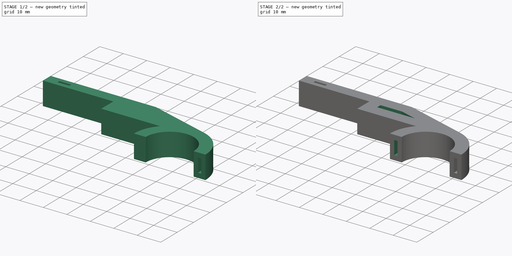
[diagram: build sequence overview — one tinted view per stage of 2, left to right]
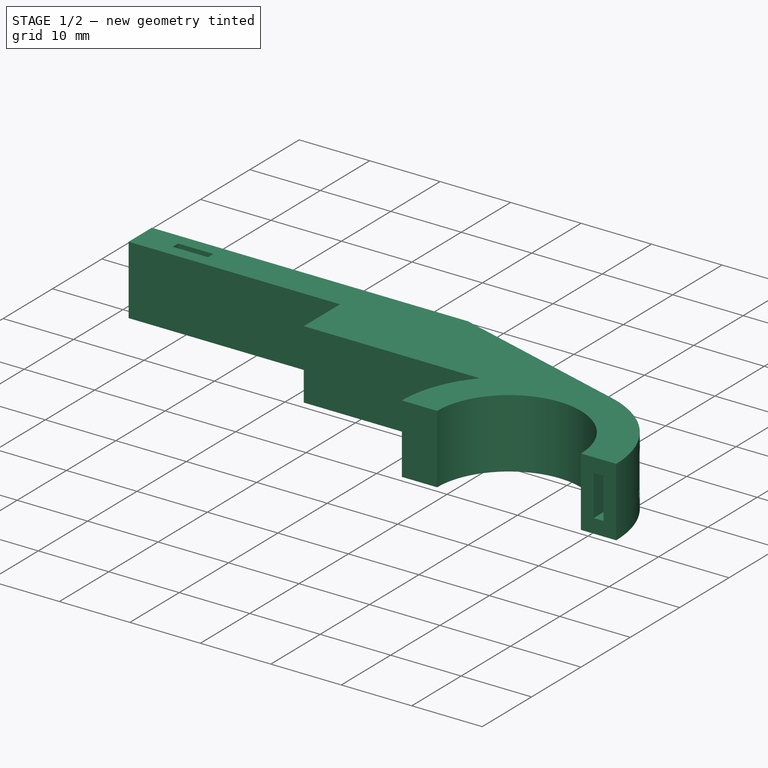
[diagram: stage 1 of 2 — iso view after this stage's code; geometry added in this stage tinted green]
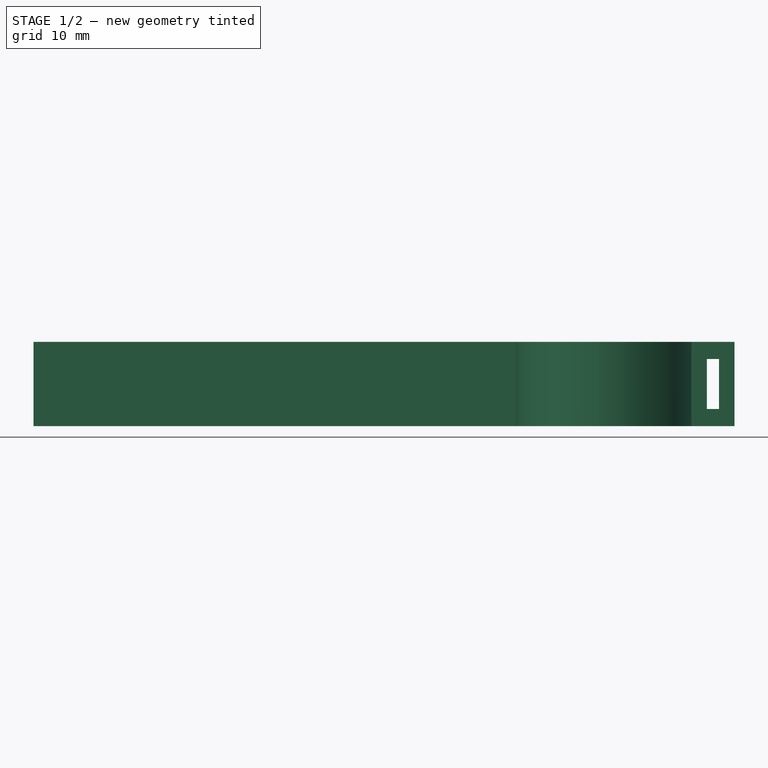
[diagram: stage 1 of 2 — front view after this stage's code; geometry added in this stage tinted green]
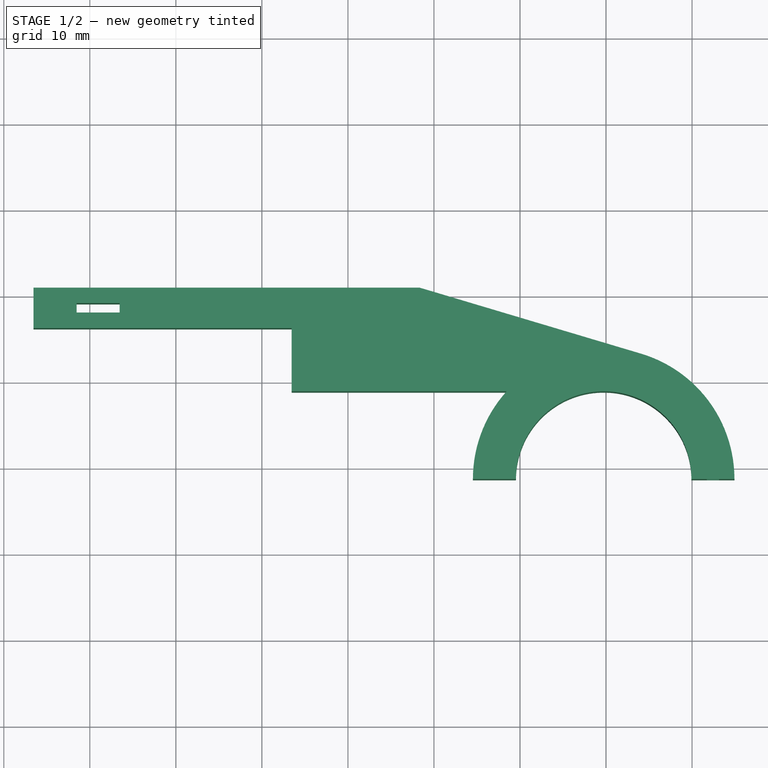
[diagram: stage 1 of 2 — top view after this stage's code; geometry added in this stage tinted green]
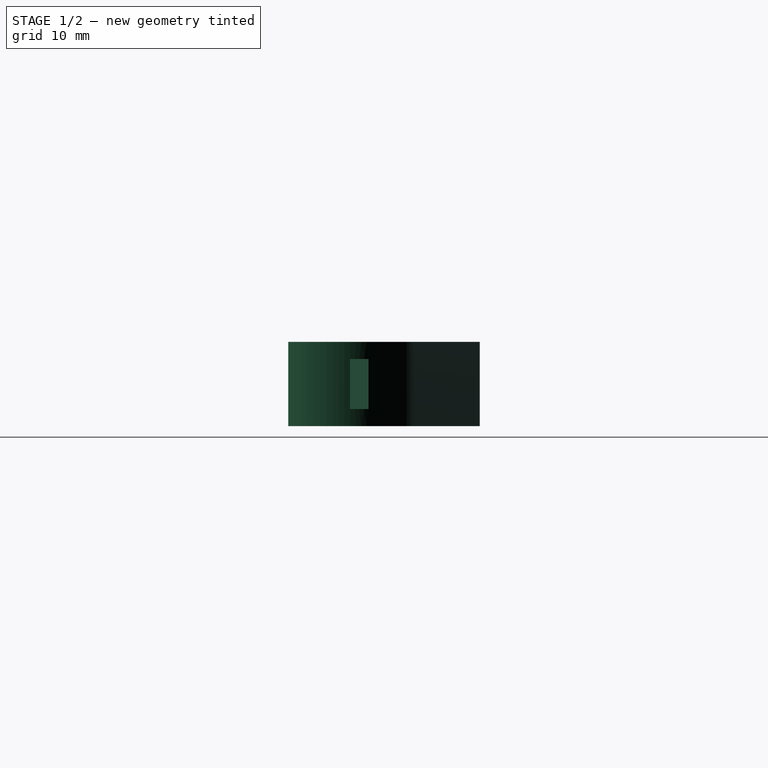
[diagram: stage 1 of 2 — right view after this stage's code; geometry added in this stage tinted green]
FCSTD DOCUMENT  (FreeCAD 0.14R3700 (Git))
Label: velo
License: CC-BY 3.0
LicenseURL: http://creativecommons.org/licenses/by/3.0/
objects: Sketcher::SketchObject×4, PartDesign::Pocket×3, PartDesign::Pad×1
note: 12 computed .brp shape members not serialized (recipe doc carries the construction recipe); baked Part::Feature solids carry a one-line shape summary decoded from their .brp

FEATURE [Sketcher::SketchObject] Sketch
  sketch-geometry (15):
    g0: LineSegment StartX=-26.5417 StartY=0.920592 StartZ=0 EndX=-26.5417 EndY=-3.77941 EndZ=0
    g1: LineSegment StartX=-26.5417 StartY=-3.77941 StartZ=0 EndX=3.45826 EndY=-3.77941 EndZ=0
    g2: LineSegment StartX=3.45826 StartY=-3.77941 StartZ=0 EndX=3.45826 EndY=-11.1294 EndZ=0
    g3: LineSegment StartX=3.45826 StartY=-11.1294 StartZ=0 EndX=28.4583 EndY=-11.1294 EndZ=0
    g4: LineSegment StartX=-26.5417 StartY=0.920592 StartZ=0 EndX=18.3132 EndY=0.920592 EndZ=0
    g5: ArcOfCircle CenterX=39.7277 CenterY=-21.3294 CenterZ=0 NormalX=0 NormalY=0 NormalZ=1 Radius=10.2 StartAngle=0 EndAngle=3.14159
    g6: ArcOfCircle CenterX=39.7277 CenterY=-21.3294 CenterZ=0 NormalX=0 NormalY=0 NormalZ=1 Radius=15.2 StartAngle=2.40597 EndAngle=3.14159
    g7: LineSegment StartX=24.5277 StartY=-21.3294 StartZ=0 EndX=29.5277 EndY=-21.3294 EndZ=0
    g8: LineSegment StartX=18.3132 StartY=0.920592 StartZ=0 EndX=44.0727 EndY=-6.76367 EndZ=0
    g9: ArcOfCircle CenterX=39.7277 CenterY=-21.3294 CenterZ=0 NormalX=0 NormalY=0 NormalZ=1 Radius=15.2 StartAngle=0 EndAngle=1.2809
    g10: LineSegment StartX=49.9277 StartY=-21.3294 StartZ=0 EndX=54.9277 EndY=-21.3294 EndZ=0
    g11: LineSegment StartX=-21.5417 StartY=-1.97941 StartZ=0 EndX=-16.5417 EndY=-1.97941 EndZ=0
    g12: LineSegment StartX=-16.5417 StartY=-1.97941 StartZ=0 EndX=-16.5417 EndY=-0.879408 EndZ=0
    g13: LineSegment StartX=-16.5417 StartY=-0.879408 StartZ=0 EndX=-21.5417 EndY=-0.879408 EndZ=0
    g14: LineSegment StartX=-21.5417 StartY=-0.879408 StartZ=0 EndX=-21.5417 EndY=-1.97941 EndZ=0
  constraints (43):
    c: Vertical(g0)
    c: Coincident(g0,g1)
    c: Horizontal(g1)
    c: Coincident(g1,g2)
    c: Vertical(g2)
    c: Coincident(g2,g3)
    c: Horizontal(g3)
    c: Horizontal(g4)
    c: Coincident(g0,g4)
    c: Coincident(g6,g5)
    c: Coincident(g7,g6)
    c: Horizontal(g7)
    c: Coincident(g5,g7)
    c: Coincident(g4,g8)
    c: Coincident(g9,g5)
    c: Coincident(g10,g5)
    c: Coincident(g9,g10)
    c: Horizontal(g10)
    c: DistanceX(g0,g1) = 30
    c: DistanceY(g0,g0) = 4.7
    c: DistanceY(g1,g2) = -7.35
    c: Coincident(g9,g8)
    c: Tangent(g8,g9)
    c: PointOnObject(g5,g7)
    c: PointOnObject(g5,g10)
    c: Coincident(g6,g3)
    c: Radius(g5) = 10.2
    c: Radius(g6) = 15.2
    c: Radius(g9) = 15.2
    c: Coincident(g11,g12)
    c: Coincident(g12,g13)
    c: Coincident(g13,g14)
    c: Coincident(g14,g11)
    c: Horizontal(g11)
    c: Horizontal(g13)
    c: Vertical(g12)
    c: Vertical(g14)
    c: DistanceY(g13,g0) = 1.8
    c: DistanceY(g11,g0) = -1.8
    c: DistanceX(g0,g12) = 10
    c: DistanceX(g13,g0) = -5
    c: DistanceY(g6,g3) = 10.2
    c: DistanceX(g1,g3) = 25
FEATURE [PartDesign::Pad] Pad
  Length = 9.8
  Length2 = 100
  Sketch = -> Sketch
  Type = 0
FEATURE [Sketcher::SketchObject] Sketch001
  ExternalGeometry = -> [Pad]
  Placement = pos=(0,-21.3294,0) rot=(1,0,0;1.5708rad)
  Support = -> Pad [Face9]
  sketch-geometry (4):
    g0: LineSegment StartX=51.7277 StartY=7.8 StartZ=0 EndX=53.1277 EndY=7.8 EndZ=0
    g1: LineSegment StartX=53.1277 StartY=7.8 StartZ=0 EndX=53.1277 EndY=2 EndZ=0
    g2: LineSegment StartX=53.1277 StartY=2 StartZ=0 EndX=51.7277 EndY=2 EndZ=0
    g3: LineSegment StartX=51.7277 StartY=2 StartZ=0 EndX=51.7277 EndY=7.8 EndZ=0
  constraints (12):
    c: Coincident(g0,g1)
    c: Coincident(g1,g2)
    c: Coincident(g2,g3)
    c: Coincident(g3,g0)
    c: Horizontal(g0)
    c: Horizontal(g2)
    c: Vertical(g1)
    c: Vertical(g3)
    c: DistanceY(g0,g-4) = 2
    c: DistanceY(g-3,g1) = 2
    c: DistanceX(g-3,g0) = 1.8
    c: DistanceX(g0,g-4) = 1.8
FEATURE [PartDesign::Pocket] Pocket
  Length = 5
  Sketch = -> Sketch001
  Type = 1
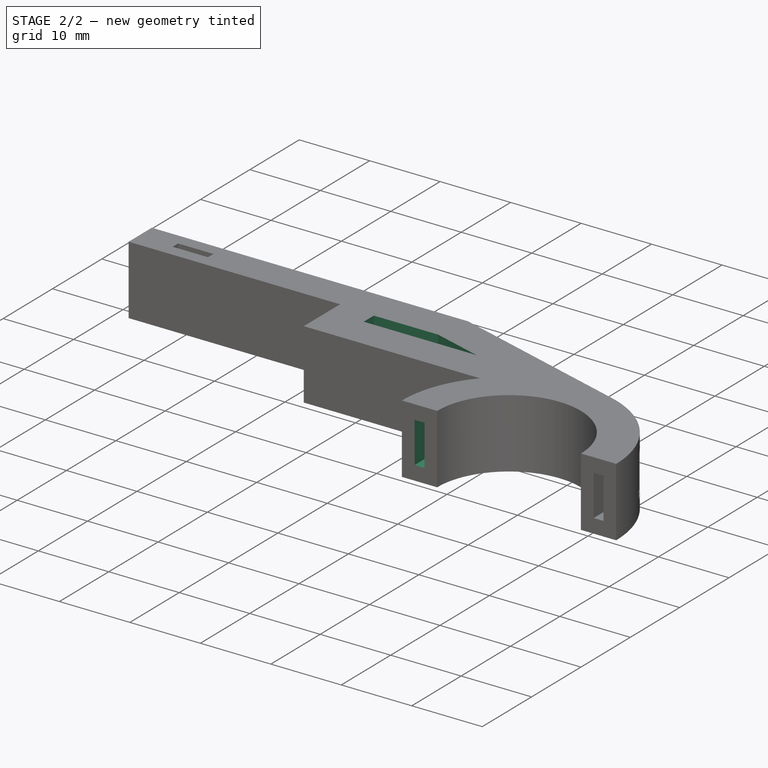
[diagram: stage 2 of 2 — iso view after this stage's code; geometry added in this stage tinted green]
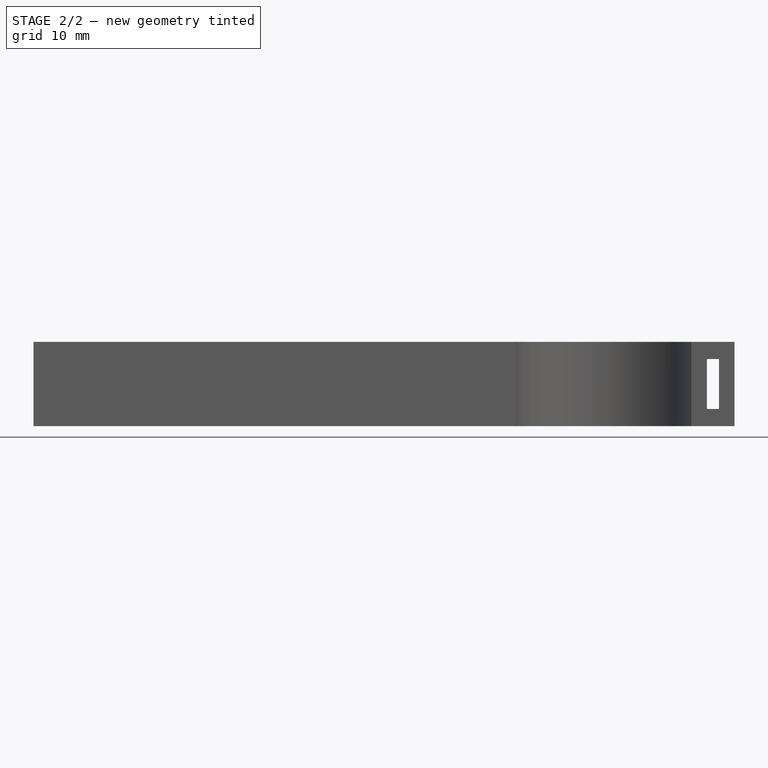
[diagram: stage 2 of 2 — front view after this stage's code; geometry added in this stage tinted green]
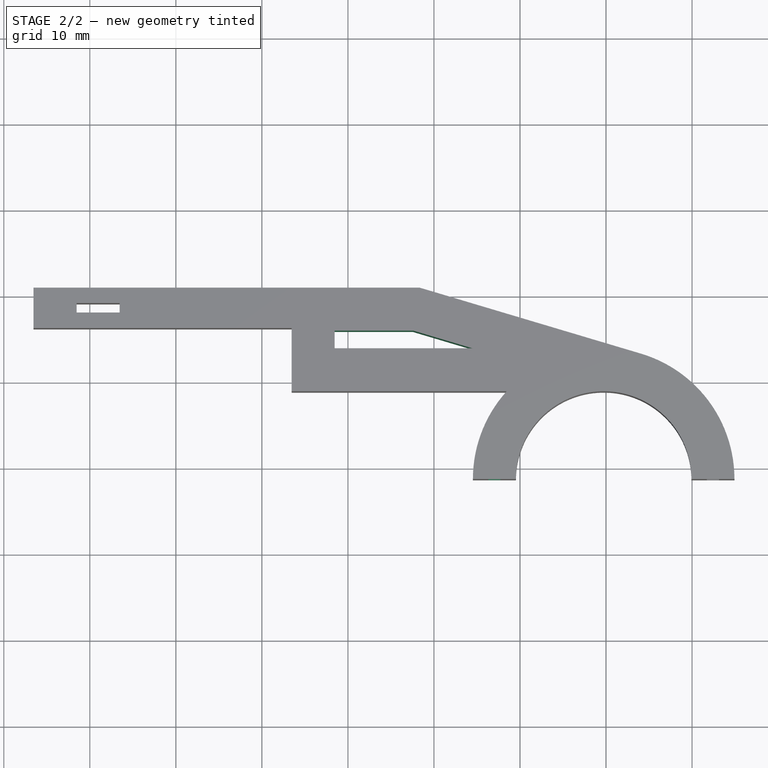
[diagram: stage 2 of 2 — top view after this stage's code; geometry added in this stage tinted green]
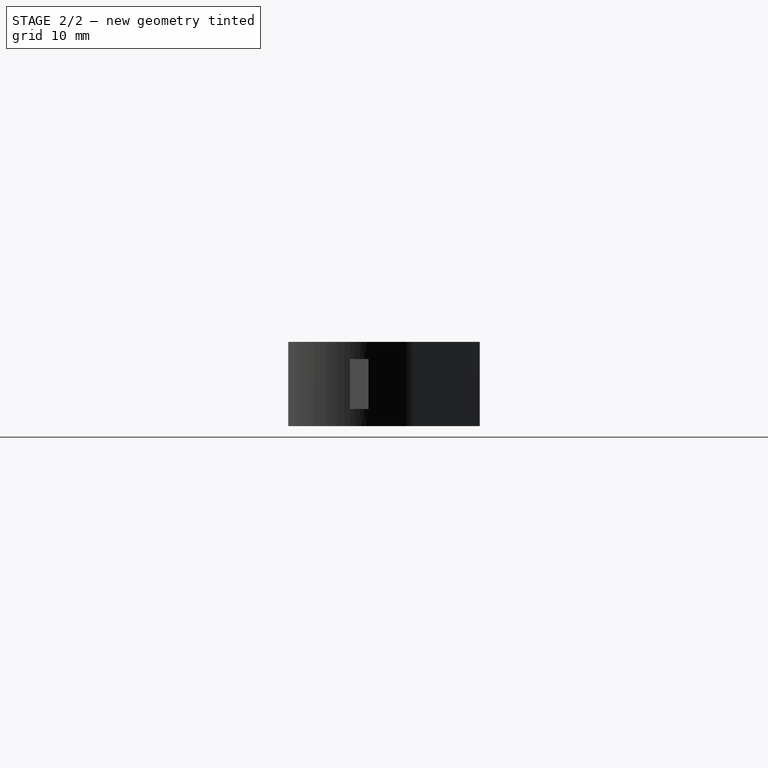
[diagram: stage 2 of 2 — right view after this stage's code; geometry added in this stage tinted green]
FEATURE [Sketcher::SketchObject] Sketch002
  ExternalGeometry = -> [Pocket]
  Placement = pos=(0,-21.3294,0) rot=(1,0,0;1.5708rad)
  Support = -> Pocket [Face11]
  sketch-geometry (4):
    g0: LineSegment StartX=26.3277 StartY=7.8 StartZ=0 EndX=27.7277 EndY=7.8 EndZ=0
    g1: LineSegment StartX=27.7277 StartY=7.8 StartZ=0 EndX=27.7277 EndY=2 EndZ=0
    g2: LineSegment StartX=27.7277 StartY=2 StartZ=0 EndX=26.3277 EndY=2 EndZ=0
    g3: LineSegment StartX=26.3277 StartY=2 StartZ=0 EndX=26.3277 EndY=7.8 EndZ=0
  constraints (12):
    c: Coincident(g0,g1)
    c: Coincident(g1,g2)
    c: Coincident(g2,g3)
    c: Coincident(g3,g0)
    c: Horizontal(g0)
    c: Horizontal(g2)
    c: Vertical(g1)
    c: Vertical(g3)
    c: DistanceX(g0,g-4) = -1.8
    c: DistanceX(g0,g-4) = 1.8
    c: DistanceY(g0,g-4) = 2
    c: DistanceY(g2,g-3) = -2
FEATURE [PartDesign::Pocket] Pocket001
  Length = 5
  Sketch = -> Sketch002
  Type = 2
FEATURE [Sketcher::SketchObject] Sketch003
  ExternalGeometry = -> [Pocket001]
  Placement = pos=(0,0,9.8) rot=(0,0,1;0rad)
  Support = -> Pocket001 [Face5]
  sketch-geometry (4):
    g0: LineSegment StartX=8.45826 StartY=-6.12941 StartZ=0 EndX=8.45826 EndY=-4.07941 EndZ=0
    g1: LineSegment StartX=8.45826 StartY=-4.07941 StartZ=0 EndX=17.5834 EndY=-4.07941 EndZ=0
    g2: LineSegment StartX=17.5834 StartY=-4.07941 StartZ=0 EndX=24.4555 EndY=-6.12941 EndZ=0
    g3: LineSegment StartX=24.4555 StartY=-6.12941 StartZ=0 EndX=8.45826 EndY=-6.12941 EndZ=0
  constraints (12):
    c: Vertical(g0)
    c: Coincident(g0,g1)
    c: Horizontal(g1)
    c: Coincident(g1,g2)
    c: Coincident(g2,g3)
    c: Coincident(g3,g0)
    c: Horizontal(g3)
    c: DistanceY(g-3,g0) = 5
    c: DistanceY(g0,g-4) = 5
    c: DistanceX(g0,g-3) = -5
    c: Parallel(g2,g-5)
    c: Distance(g1,g-5) = 5
FEATURE [PartDesign::Pocket] Pocket002
  Length = 5
  Sketch = -> Sketch003
  Type = 1
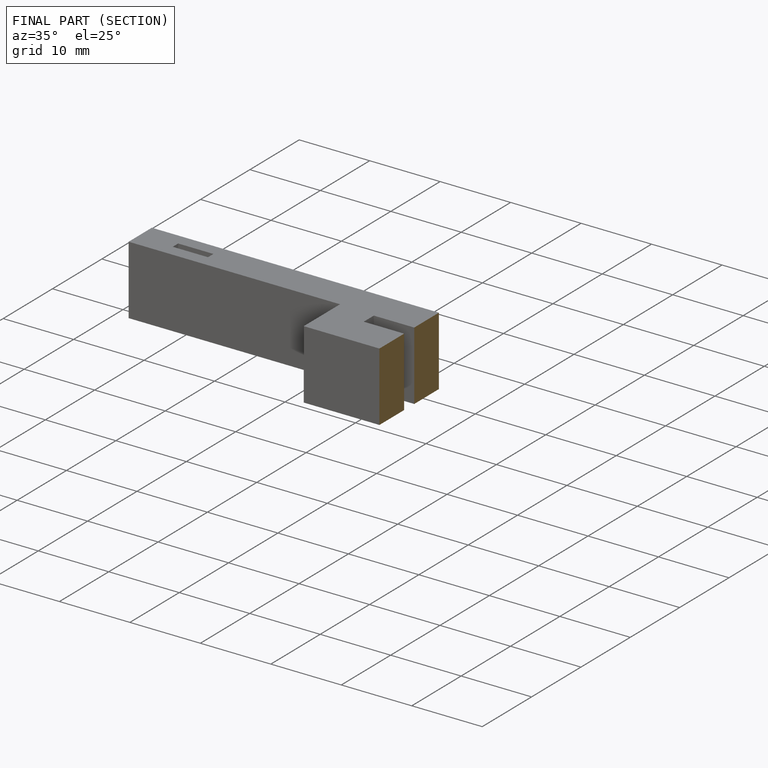
[diagram: finished part — half-section view (interior)]
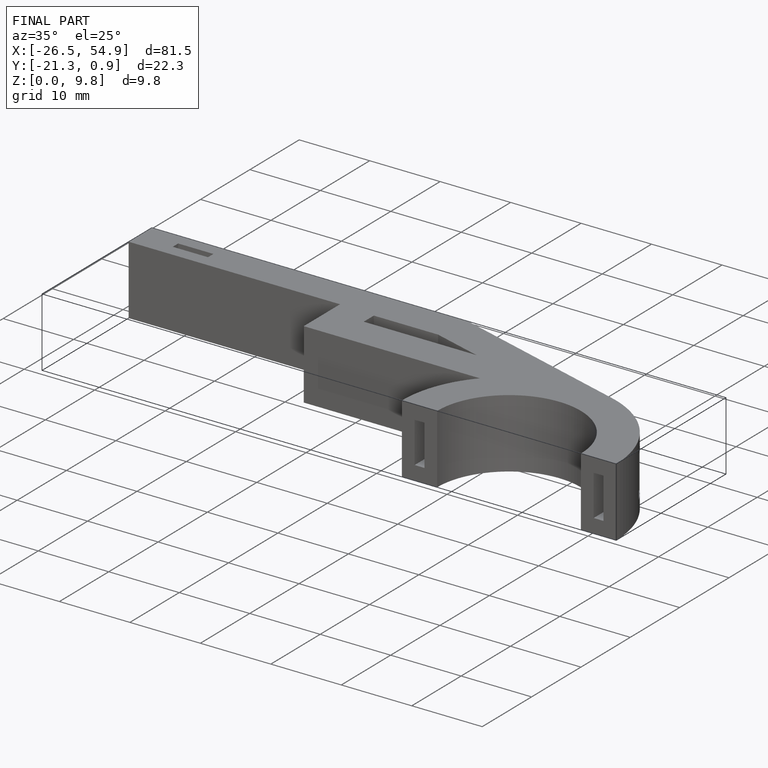
[diagram: finished part — iso view with bounding-box wireframe]
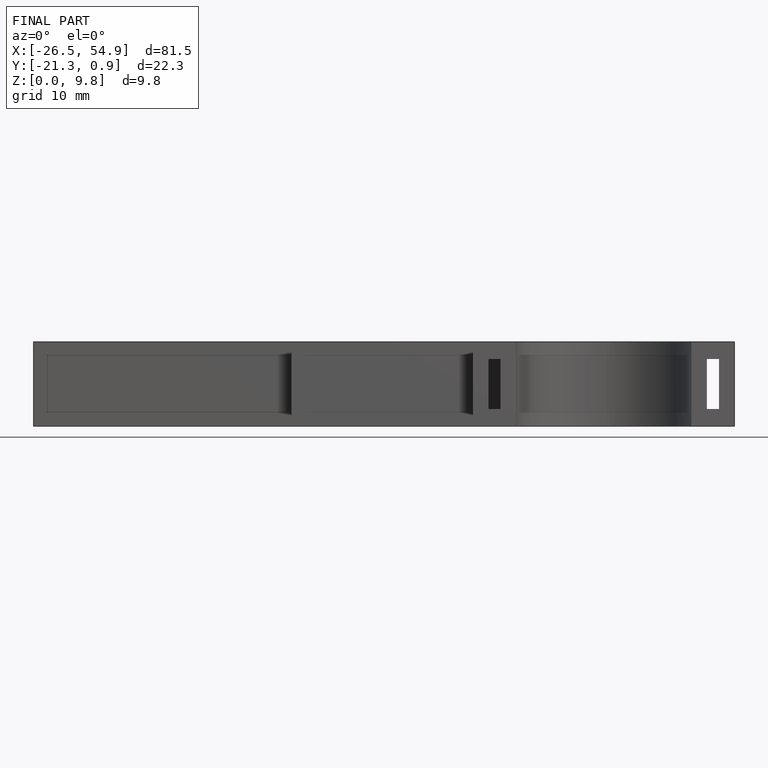
[diagram: finished part — front view with bounding-box wireframe]
